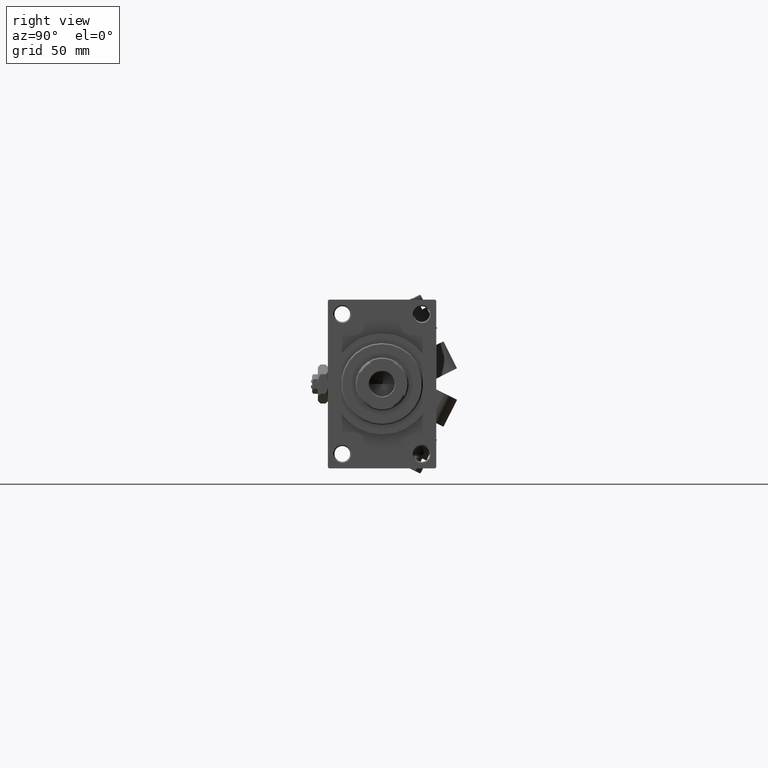
[diagram: clean part render]
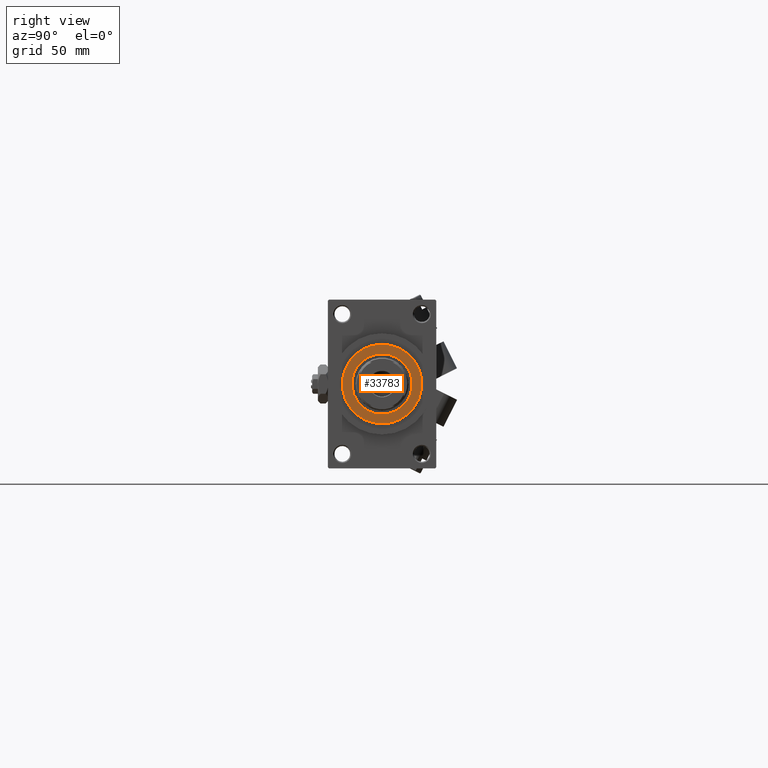
[diagram: same view with one face highlighted and labeled with its STEP entity id]
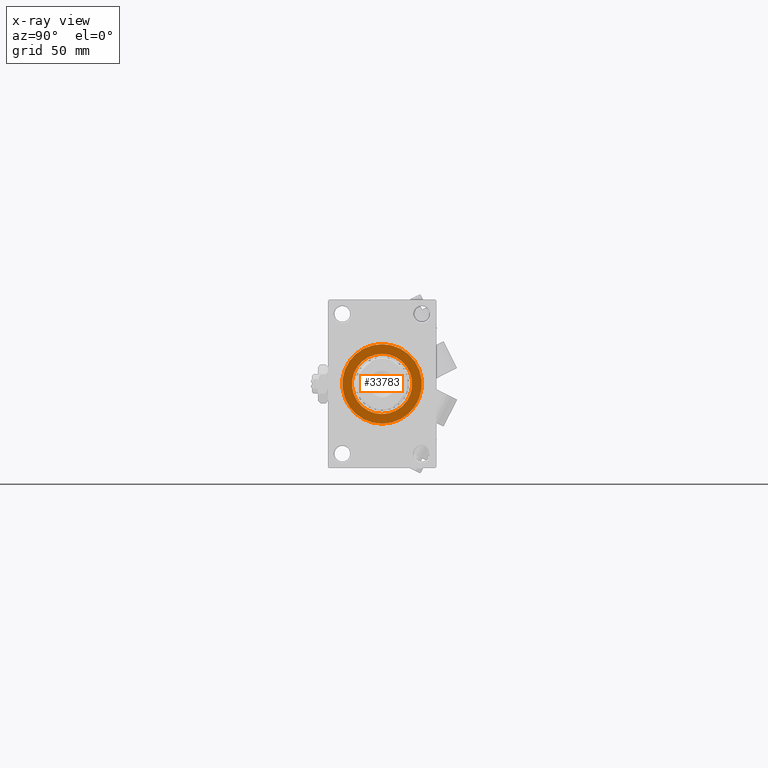
[diagram: x-ray of the same camera — body ghosted, the highlighted face saturated]
A machine part, right view. The second image highlights one B-rep face of the part: STEP entity #33783.
The next image is the same camera in x-ray: the body ghosted, the highlighted face saturated — about 0% of this face is hidden behind the body in this view.
In plain terms, the highlighted planar face has unit normal (1, -0, -0).
Its self-contained STEP definition (entity closure, byte-faithful):
#317 = VERTEX_POINT ( 'NONE', #19199 ) ;
#1288 = DIRECTION ( 'NONE',  ( 1.000000000000000000, 0.000000000000000000, 0.000000000000000000 ) ) ;
#3600 = AXIS2_PLACEMENT_3D ( 'NONE', #44301, #9565, #13871 ) ;
#4790 = VERTEX_POINT ( 'NONE', #40853 ) ;
#4913 = ORIENTED_EDGE ( 'NONE', *, *, #24433, .F. ) ;
#6956 = ORIENTED_EDGE ( 'NONE', *, *, #20805, .T. ) ;
#7081 = DIRECTION ( 'NONE',  ( 0.000000000000000000, 0.000000000000000000, 1.000000000000000000 ) ) ;
#9565 = DIRECTION ( 'NONE',  ( 0.000000000000000000, 0.000000000000000000, 1.000000000000000000 ) ) ;
#10745 = DIRECTION ( 'NONE',  ( 0.000000000000000000, 0.000000000000000000, 1.000000000000000000 ) ) ;
#12145 = VERTEX_POINT ( 'NONE', #18591 ) ;
#13871 = DIRECTION ( 'NONE',  ( 1.000000000000000000, 0.000000000000000000, 0.000000000000000000 ) ) ;
#15748 = CARTESIAN_POINT ( 'NONE',  ( 0.000000000000000000, 0.000000000000000000, 55.26000000000000512 ) ) ;
#17452 = AXIS2_PLACEMENT_3D ( 'NONE', #25342, #7081, #44872 ) ;
#18584 = PLANE ( 'NONE',  #29118 ) ;
#18591 = CARTESIAN_POINT ( 'NONE',  ( 12.50000000000000000, 0.000000000000000000, 55.26000000000000512 ) ) ;
#19199 = CARTESIAN_POINT ( 'NONE',  ( -16.50000000000001421, 0.000000000000000000, 55.26000000000000512 ) ) ;
#20805 = EDGE_CURVE ( 'NONE', #26165, #317, #25417, .T. ) ;
#21375 = CARTESIAN_POINT ( 'NONE',  ( 0.000000000000000000, 0.000000000000000000, 55.26000000000000512 ) ) ;
#21605 = CIRCLE ( 'NONE', #31375, 12.50000000000000000 ) ;
#24347 = CARTESIAN_POINT ( 'NONE',  ( 0.000000000000000000, 0.000000000000000000, 55.26000000000000512 ) ) ;
#24433 = EDGE_CURVE ( 'NONE', #4790, #12145, #35274, .T. ) ;
#24470 = EDGE_LOOP ( 'NONE', ( #28037, #4913 ) ) ;
#25342 = CARTESIAN_POINT ( 'NONE',  ( 0.000000000000000000, 0.000000000000000000, 55.26000000000000512 ) ) ;
#25417 = CIRCLE ( 'NONE', #31902, 16.50000000000001421 ) ;
#25441 = FACE_BOUND ( 'NONE', #24470, .T. ) ;
#25994 = CARTESIAN_POINT ( 'NONE',  ( 16.50000000000001421, 2.051283388571817281E-15, 55.26000000000000512 ) ) ;
#26165 = VERTEX_POINT ( 'NONE', #25994 ) ;
#28037 = ORIENTED_EDGE ( 'NONE', *, *, #41698, .F. ) ;
#29118 = AXIS2_PLACEMENT_3D ( 'NONE', #21375, #10745, #49039 ) ;
#31375 = AXIS2_PLACEMENT_3D ( 'NONE', #15748, #46689, #43123 ) ;
#31902 = AXIS2_PLACEMENT_3D ( 'NONE', #24347, #35758, #1288 ) ;
#33535 = CIRCLE ( 'NONE', #3600, 16.50000000000001421 ) ;
#33783 = ADVANCED_FACE ( 'NONE', ( #25441, #44471 ), #18584, .T. ) ;
#34725 = EDGE_CURVE ( 'NONE', #317, #26165, #33535, .T. ) ;
#35274 = CIRCLE ( 'NONE', #17452, 12.50000000000000000 ) ;
#35758 = DIRECTION ( 'NONE',  ( 0.000000000000000000, 0.000000000000000000, 1.000000000000000000 ) ) ;
#40387 = ORIENTED_EDGE ( 'NONE', *, *, #34725, .T. ) ;
#40853 = CARTESIAN_POINT ( 'NONE',  ( -12.50000000000000000, 1.530808498934191521E-15, 55.26000000000000512 ) ) ;
#41698 = EDGE_CURVE ( 'NONE', #12145, #4790, #21605, .T. ) ;
#43123 = DIRECTION ( 'NONE',  ( 1.000000000000000000, 0.000000000000000000, 0.000000000000000000 ) ) ;
#44301 = CARTESIAN_POINT ( 'NONE',  ( 0.000000000000000000, 0.000000000000000000, 55.26000000000000512 ) ) ;
#44471 = FACE_OUTER_BOUND ( 'NONE', #50108, .T. ) ;
#44872 = DIRECTION ( 'NONE',  ( 1.000000000000000000, 0.000000000000000000, 0.000000000000000000 ) ) ;
#46689 = DIRECTION ( 'NONE',  ( 0.000000000000000000, 0.000000000000000000, 1.000000000000000000 ) ) ;
#49039 = DIRECTION ( 'NONE',  ( 1.000000000000000000, 0.000000000000000000, -0.000000000000000000 ) ) ;
#50108 = EDGE_LOOP ( 'NONE', ( #40387, #6956 ) ) ;